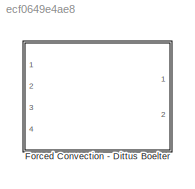
MODEL slx_ecf0649e4ae8
KIND library
CONFIG AbsTol = auto
CONFIG FixedStep = auto
CONFIG MaxStep = auto
CONFIG MinStep = auto
CONFIG RelTol = 1e-3
CONFIG SampleTimeConstraint = Unconstrained
CONFIG Solver = ode45
CONFIG SolverMode = Auto
CONFIG SolverName = ode45
CONFIG StartTime = 0.0
CONFIG StopTime = 10.0
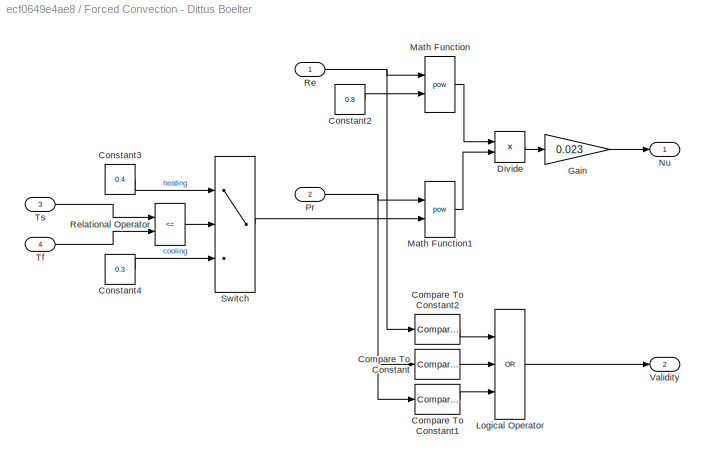
BLOCK [SubSystem] Forced Convection - Dittus Boelter
  Ports = [4, 2]
  RequestExecContextInheritance = off
BLOCK [Reference] Forced Convection - Dittus Boelter/Compare To Constant  REF=simulink/Logic and Bit
Operations/Compare
To Constant
  OutDataTypeStr = boolean
  Ports = [1, 1]
  SourceBlock = simulink/Logic and Bit\nOperations/Compare\nTo Constant
  SourceType = Compare To Constant
  ZeroCross = on
  const = 0.6
  relop = <
BLOCK [Reference] Forced Convection - Dittus Boelter/Compare To Constant1  REF=simulink/Logic and Bit
Operations/Compare
To Constant
  OutDataTypeStr = boolean
  Ports = [1, 1]
  SourceBlock = simulink/Logic and Bit\nOperations/Compare\nTo Constant
  SourceType = Compare To Constant
  ZeroCross = on
  const = 160
  relop = >
BLOCK [Reference] Forced Convection - Dittus Boelter/Compare To Constant2  REF=simulink/Logic and Bit
Operations/Compare
To Constant
  OutDataTypeStr = boolean
  Ports = [1, 1]
  SourceBlock = simulink/Logic and Bit\nOperations/Compare\nTo Constant
  SourceType = Compare To Constant
  ZeroCross = on
  const = 10000
  relop = <
BLOCK [Constant] Forced Convection - Dittus Boelter/Constant2
  Value = 0.8
BLOCK [Constant] Forced Convection - Dittus Boelter/Constant3
  Value = 0.4
BLOCK [Constant] Forced Convection - Dittus Boelter/Constant4
  Value = 0.3
BLOCK [Product] Forced Convection - Dittus Boelter/Divide
  InputSameDT = off
  Inputs = **
  OutDataTypeStr = Inherit: Inherit via internal rule
  Ports = [2, 1]
  RndMeth = Floor
  SaturateOnIntegerOverflow = off
BLOCK [Gain] Forced Convection - Dittus Boelter/Gain
  Gain = 0.023
  OutDataTypeStr = Inherit: Inherit via internal rule
  ParamDataTypeStr = Inherit: Inherit via internal rule
  SaturateOnIntegerOverflow = off
BLOCK [Logic] Forced Convection - Dittus Boelter/Logical Operator
  AllPortsSameDT = off
  Inputs = 3
  Operator = OR
  OutDataTypeStr = boolean
  Ports = [3, 1]
BLOCK [Math] Forced Convection - Dittus Boelter/Math Function
  Operator = pow
  Ports = [2, 1]
BLOCK [Math] Forced Convection - Dittus Boelter/Math Function1
  Operator = pow
  Ports = [2, 1]
BLOCK [Outport] Forced Convection - Dittus Boelter/Nu
  IconDisplay = Port number
BLOCK [Inport] Forced Convection - Dittus Boelter/Pr
  IconDisplay = Port number
  Port = 2
BLOCK [Inport] Forced Convection - Dittus Boelter/Re
  IconDisplay = Port number
BLOCK [RelationalOperator] Forced Convection - Dittus Boelter/Relational Operator
  InputSameDT = off
  Operator = <=
  OutDataTypeStr = boolean
  Ports = [2, 1]
BLOCK [Switch] Forced Convection - Dittus Boelter/Switch
  Criteria = u2 > Threshold
  InputSameDT = off
  SaturateOnIntegerOverflow = off
BLOCK [Inport] Forced Convection - Dittus Boelter/Tf
  IconDisplay = Port number
  Port = 4
BLOCK [Inport] Forced Convection - Dittus Boelter/Ts
  IconDisplay = Port number
  Port = 3
BLOCK [Outport] Forced Convection - Dittus Boelter/Validity
  IconDisplay = Port number
  Port = 2
LINE Forced Convection - Dittus Boelter/Compare To Constant1:1 -> Forced Convection - Dittus Boelter/Logical Operator:3
LINE Forced Convection - Dittus Boelter/Compare To Constant2:1 -> Forced Convection - Dittus Boelter/Logical Operator:1
LINE Forced Convection - Dittus Boelter/Compare To Constant:1 -> Forced Convection - Dittus Boelter/Logical Operator:2
LINE Forced Convection - Dittus Boelter/Constant2:1 -> Forced Convection - Dittus Boelter/Math Function:2
LINE Forced Convection - Dittus Boelter/Constant3:1 -> Forced Convection - Dittus Boelter/Switch:1
LINE Forced Convection - Dittus Boelter/Constant4:1 -> Forced Convection - Dittus Boelter/Switch:3
LINE Forced Convection - Dittus Boelter/Divide:1 -> Forced Convection - Dittus Boelter/Gain:1
LINE Forced Convection - Dittus Boelter/Gain:1 -> Forced Convection - Dittus Boelter/Nu:1
LINE Forced Convection - Dittus Boelter/Logical Operator:1 -> Forced Convection - Dittus Boelter/Validity:1
LINE Forced Convection - Dittus Boelter/Math Function1:1 -> Forced Convection - Dittus Boelter/Divide:2
LINE Forced Convection - Dittus Boelter/Math Function:1 -> Forced Convection - Dittus Boelter/Divide:1
NET Forced Convection - Dittus Boelter/Pr:1 -> Forced Convection - Dittus Boelter/Compare To Constant1:1, Forced Convection - Dittus Boelter/Compare To Constant:1, Forced Convection - Dittus Boelter/Math Function1:1
NET Forced Convection - Dittus Boelter/Re:1 -> Forced Convection - Dittus Boelter/Compare To Constant2:1, Forced Convection - Dittus Boelter/Math Function:1
LINE Forced Convection - Dittus Boelter/Relational Operator:1 -> Forced Convection - Dittus Boelter/Switch:2
LINE Forced Convection - Dittus Boelter/Switch:1 -> Forced Convection - Dittus Boelter/Math Function1:2
LINE Forced Convection - Dittus Boelter/Tf:1 -> Forced Convection - Dittus Boelter/Relational Operator:2
LINE Forced Convection - Dittus Boelter/Ts:1 -> Forced Convection - Dittus Boelter/Relational Operator:1
note: NET lines group one-source signal fan-out (src -> all destinations, sorted); 1:1 wires keep LINE
